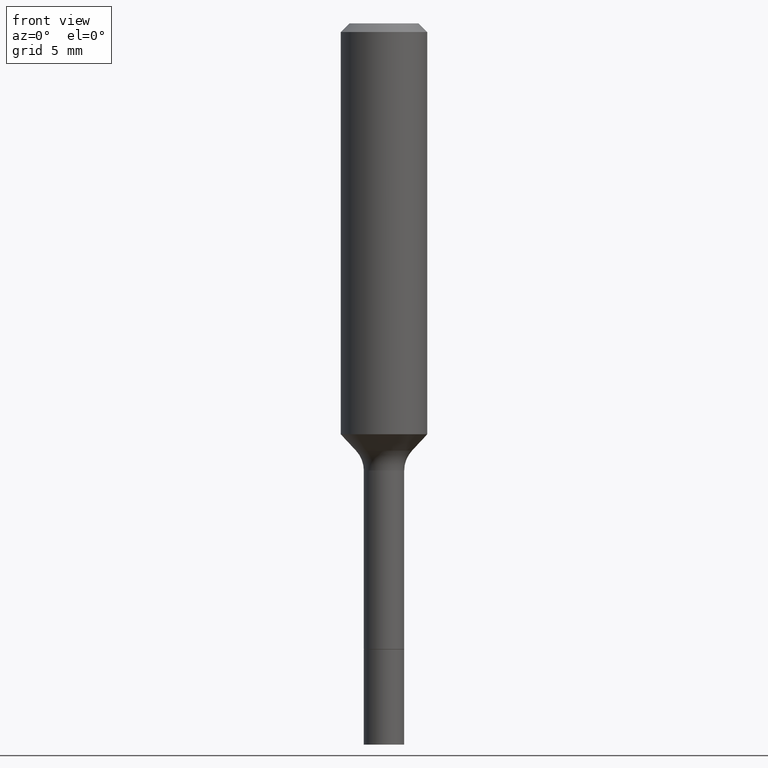
[diagram: clean part render]
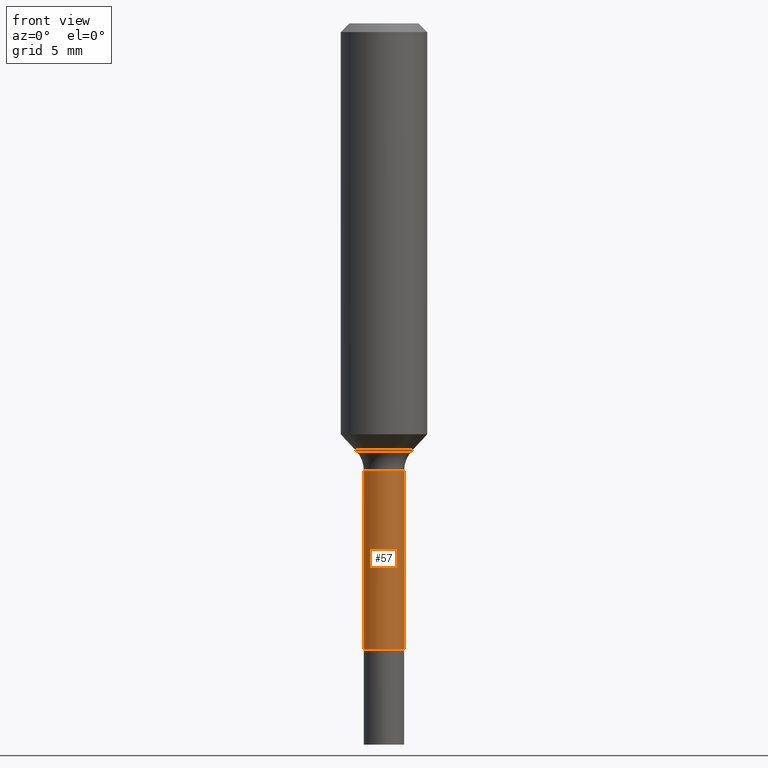
[diagram: same view with one face highlighted and labeled with its STEP entity id]
A machine part, front view. The second image highlights one B-rep face of the part: STEP entity #57.
In plain terms, the highlighted cylindrical surface (edge-blend (fillet) strip) has radius 1.3995 mm, axis along (-0, 0, 1).
Its self-contained STEP definition (entity closure, byte-faithful):
#28 = AXIS2_PLACEMENT_3D ( 'NONE', #495, #363, #126 ) ;
#57 = ADVANCED_FACE ( 'NONE', ( #60 ), #381, .T. ) ;
#60 = FACE_OUTER_BOUND ( 'NONE', #454, .T. ) ;
#90 = DIRECTION ( 'NONE',  ( -2.445468806185136877E-29, 3.491481338843145188E-15, 1.000000000000000000 ) ) ;
#104 = AXIS2_PLACEMENT_3D ( 'NONE', #260, #425, #216 ) ;
#107 = DIRECTION ( 'NONE',  ( 1.000000000000000000, -6.982962677686266711E-15, 4.876176775795935793E-29 ) ) ;
#116 = CIRCLE ( 'NONE', #104, 0.05510000000000000314 ) ;
#126 = DIRECTION ( 'NONE',  ( 1.000000000000000000, -6.982962677686263555E-15, 0.000000000000000000 ) ) ;
#169 = VERTEX_POINT ( 'NONE', #233 ) ;
#172 = VERTEX_POINT ( 'NONE', #230 ) ;
#182 = ORIENTED_EDGE ( 'NONE', *, *, #412, .T. ) ;
#183 = DIRECTION ( 'NONE',  ( -2.445468806185136877E-29, 3.491481338843145188E-15, 1.000000000000000000 ) ) ;
#191 = CARTESIAN_POINT ( 'NONE',  ( 0.000000000000000000, 0.000000000000000000, 0.000000000000000000 ) ) ;
#197 = AXIS2_PLACEMENT_3D ( 'NONE', #191, #385, #107 ) ;
#215 = VERTEX_POINT ( 'NONE', #443 ) ;
#216 = DIRECTION ( 'NONE',  ( 1.000000000000000000, -6.982962677686274599E-15, 0.000000000000000000 ) ) ;
#226 = EDGE_CURVE ( 'NONE', #172, #215, #374, .T. ) ;
#230 = CARTESIAN_POINT ( 'NONE',  ( -0.05510000000000000314, -4.720892502997260862E-15, -1.708000000000000185 ) ) ;
#233 = CARTESIAN_POINT ( 'NONE',  ( 0.05510000000000000314, -6.348211370284607224E-15, -1.708000000000000185 ) ) ;
#247 = CARTESIAN_POINT ( 'NONE',  ( -0.05509999999999998233, 3.915090474038150768E-16, -2.710333234730452079E-30 ) ) ;
#248 = CIRCLE ( 'NONE', #28, 0.05509999999999994763 ) ;
#255 = ORIENTED_EDGE ( 'NONE', *, *, #447, .T. ) ;
#260 = CARTESIAN_POINT ( 'NONE',  ( 4.176860720964213339E-29, -5.963450126744093638E-15, -1.708000000000000185 ) ) ;
#262 = LINE ( 'NONE', #294, #441 ) ;
#294 = CARTESIAN_POINT ( 'NONE',  ( 0.05509999999999998233, -3.847612435405131916E-16, 2.686773403463559616E-30 ) ) ;
#312 = EDGE_CURVE ( 'NONE', #215, #497, #248, .T. ) ;
#322 = ORIENTED_EDGE ( 'NONE', *, *, #312, .F. ) ;
#333 = CARTESIAN_POINT ( 'NONE',  ( 0.05509999999999994763, -4.646114217598571825E-15, -1.220499999999999918 ) ) ;
#363 = DIRECTION ( 'NONE',  ( -2.445468806185136597E-29, 3.491481338843145583E-15, 1.000000000000000000 ) ) ;
#367 = ORIENTED_EDGE ( 'NONE', *, *, #226, .F. ) ;
#374 = LINE ( 'NONE', #247, #433 ) ;
#381 = CYLINDRICAL_SURFACE ( 'NONE', #197, 0.05509999999999998233 ) ;
#385 = DIRECTION ( 'NONE',  ( -2.445468806185136597E-29, 3.491481338843145583E-15, 1.000000000000000000 ) ) ;
#412 = EDGE_CURVE ( 'NONE', #169, #497, #262, .T. ) ;
#425 = DIRECTION ( 'NONE',  ( -2.445468806185136597E-29, 3.491481338843145583E-15, 1.000000000000000000 ) ) ;
#433 = VECTOR ( 'NONE', #90, 39.37007874015748143 ) ;
#441 = VECTOR ( 'NONE', #183, 39.37007874015748143 ) ;
#443 = CARTESIAN_POINT ( 'NONE',  ( -0.05509999999999994763, -4.720892502997260862E-15, -1.220499999999999918 ) ) ;
#447 = EDGE_CURVE ( 'NONE', #172, #169, #116, .T. ) ;
#454 = EDGE_LOOP ( 'NONE', ( #367, #255, #182, #322 ) ) ;
#495 = CARTESIAN_POINT ( 'NONE',  ( 2.984694677948959472E-29, -4.261352974058059028E-15, -1.220499999999999918 ) ) ;
#497 = VERTEX_POINT ( 'NONE', #333 ) ;